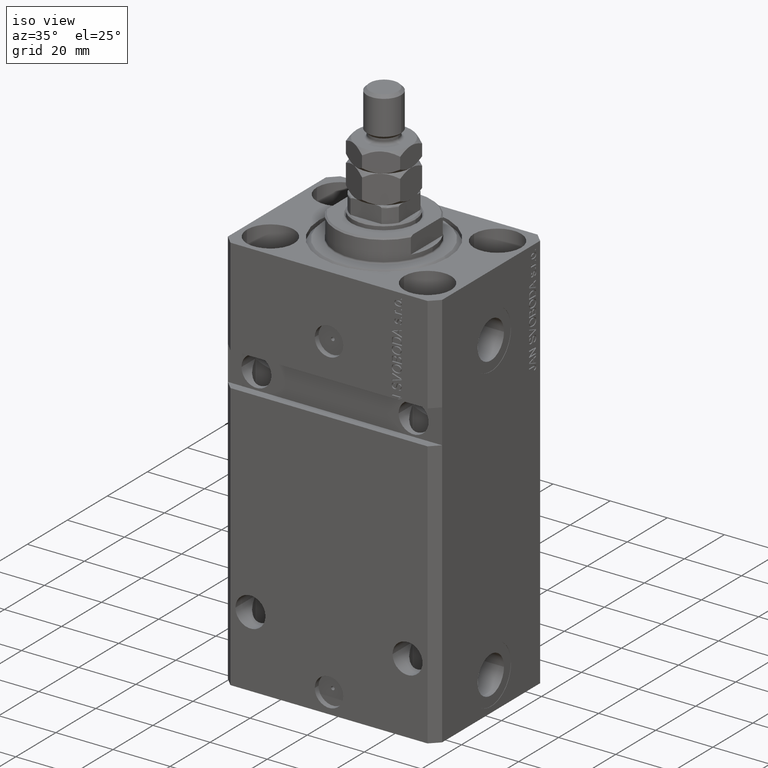
[diagram: clean part render]
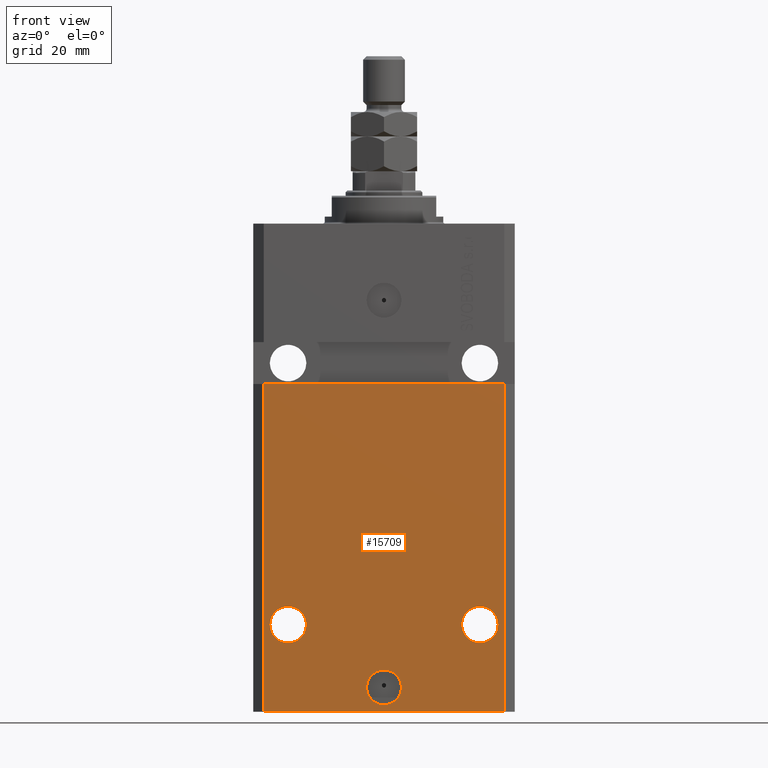
[diagram: tour spotlight — one face highlighted and labeled with its STEP entity id]
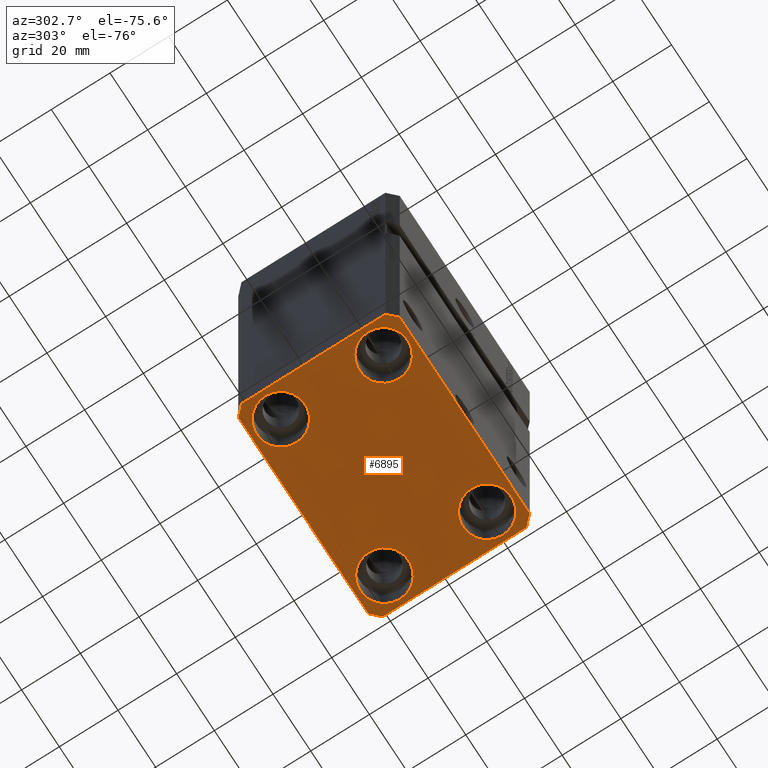
[diagram: tour spotlight — one face highlighted and labeled with its STEP entity id]
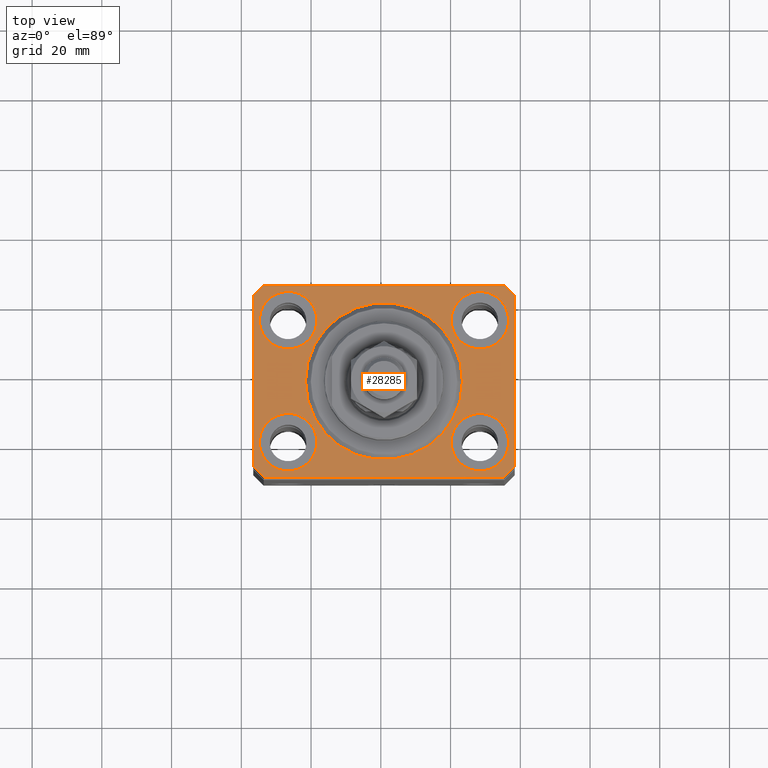
[diagram: tour spotlight — one face highlighted and labeled with its STEP entity id]
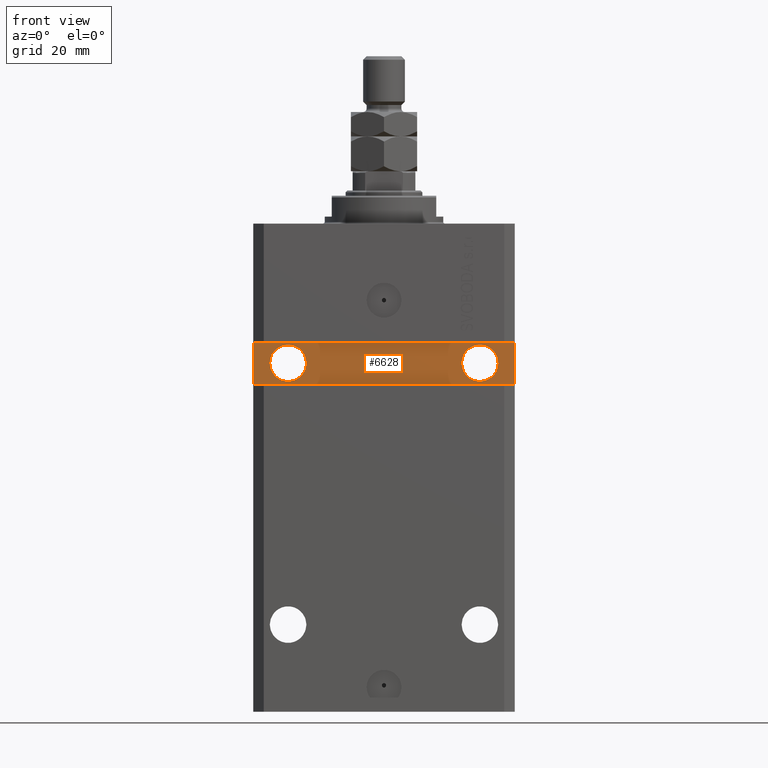
[diagram: tour spotlight — one face highlighted and labeled with its STEP entity id]
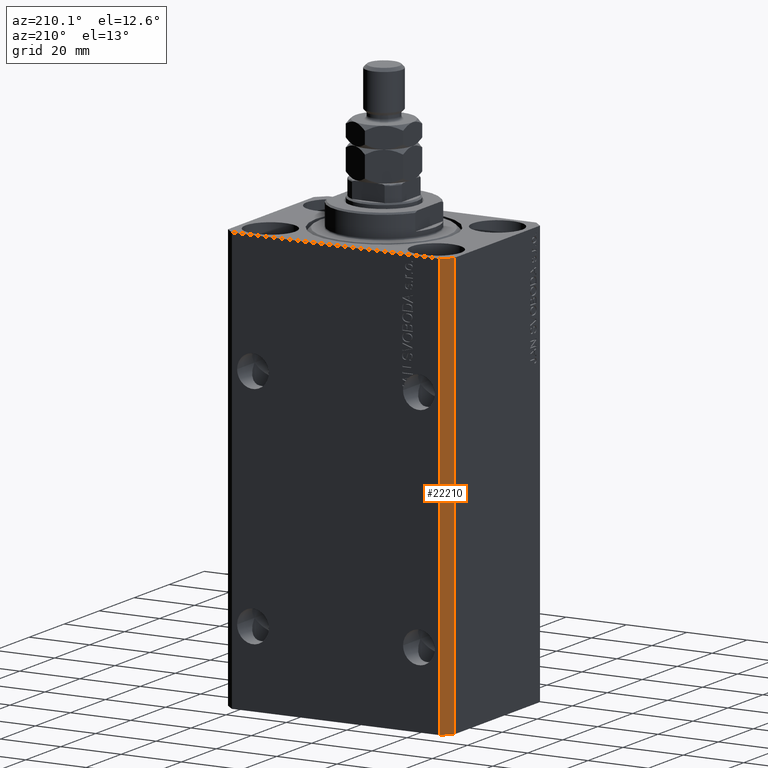
[diagram: tour spotlight — one face highlighted and labeled with its STEP entity id]
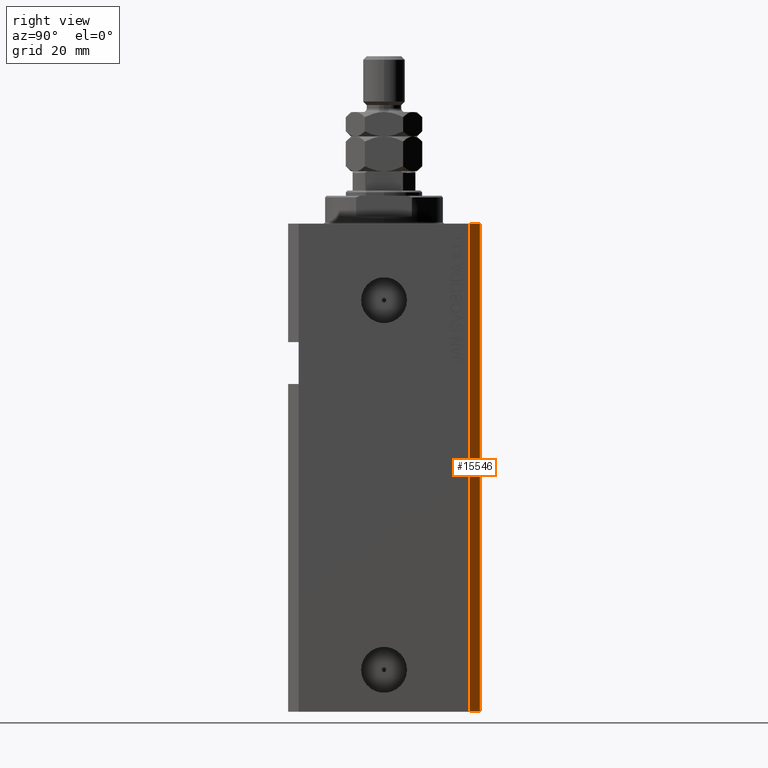
[diagram: tour spotlight — one face highlighted and labeled with its STEP entity id]
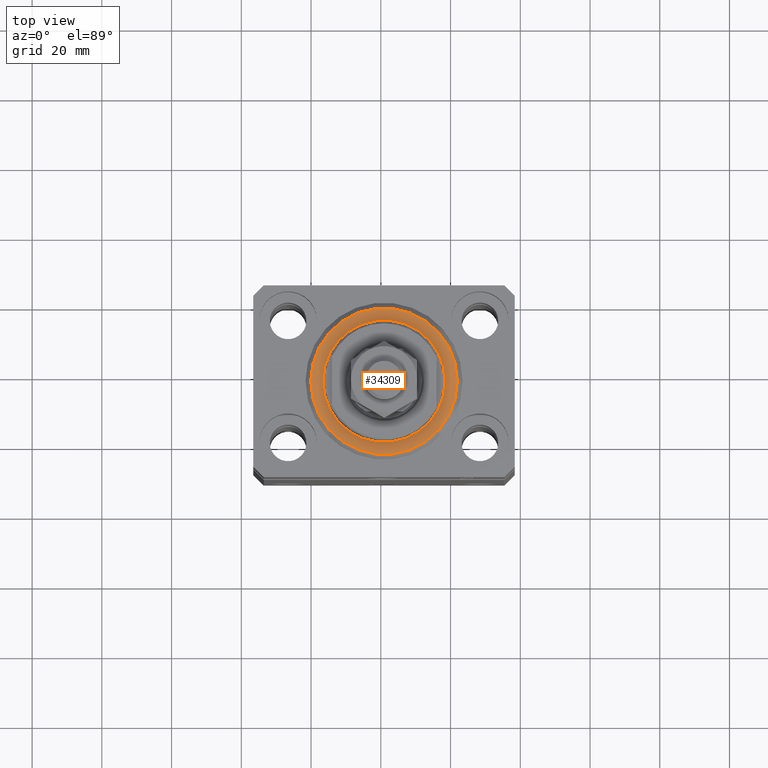
[diagram: tour spotlight — one face highlighted and labeled with its STEP entity id]
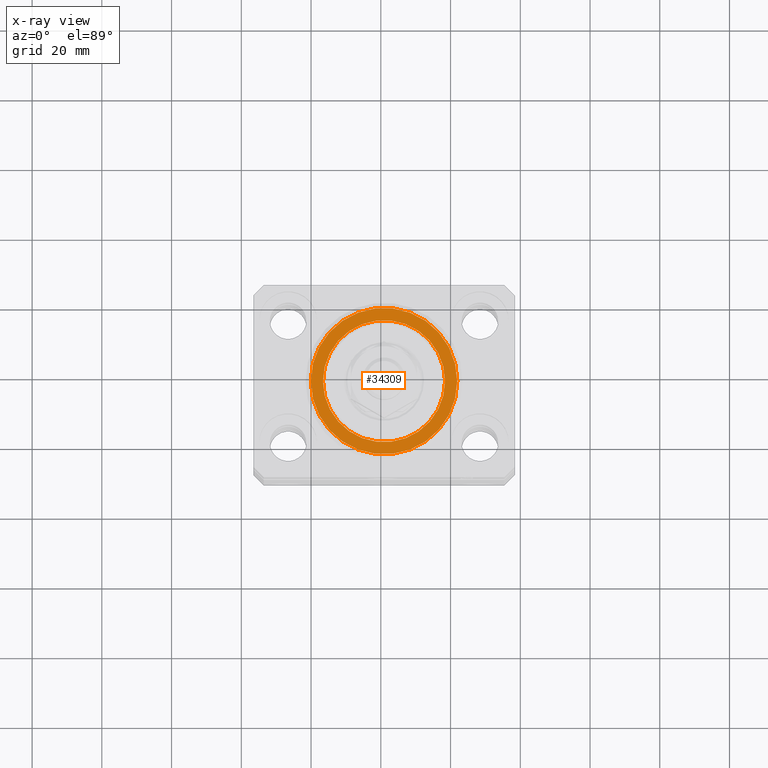
[diagram: x-ray of the same camera — body ghosted, this tour face saturated]
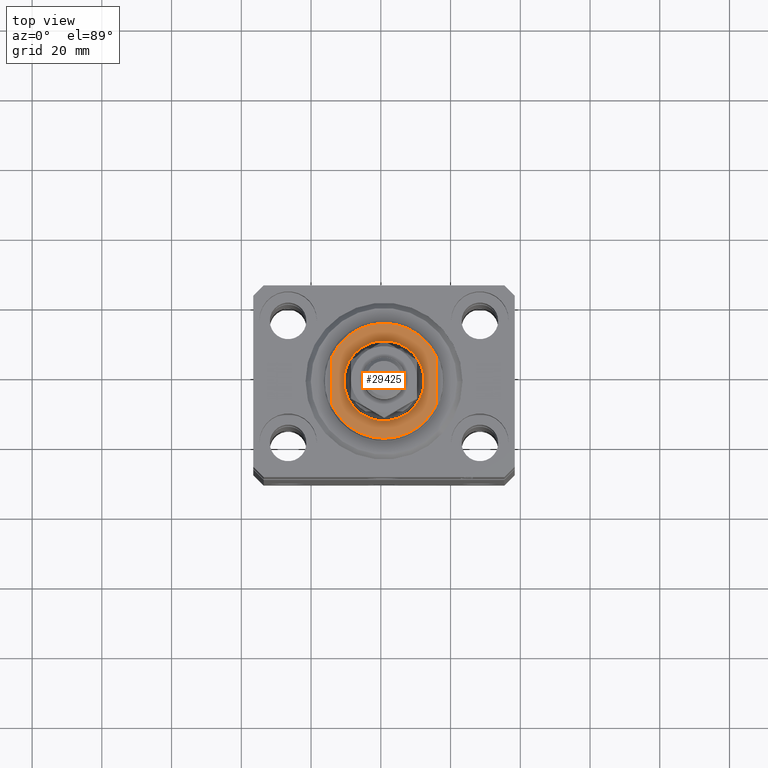
[diagram: tour spotlight — one face highlighted and labeled with its STEP entity id]
A machine part: a face-by-face anatomy tour. The part has 963 B-rep faces; the first image is the clean iso view, then the 8 largest visible faces are spotlighted one at a time (largest first), each with its STEP entity span.

Face 1 — front view, entity #15709. In plain terms, the highlighted planar face has unit normal (0, -1, 0).
Definition (entity closure, byte-faithful):
#379 = ORIENTED_EDGE ( 'NONE', *, *, #1397, .F. ) ;
#1397 = EDGE_CURVE ( 'NONE', #36921, #39883, #38174, .T. ) ;
#1476 = DIRECTION ( 'NONE',  ( 1.176083712526788232E-16, -1.000000000000000000, 0.000000000000000000 ) ) ;
#1504 = EDGE_CURVE ( 'NONE', #20198, #34349, #42659, .T. ) ;
#2279 = CARTESIAN_POINT ( 'NONE',  ( 27.50000000000001776, -27.49999999999999289, -114.9999999999999858 ) ) ;
#2753 = VERTEX_POINT ( 'NONE', #40511 ) ;
#3241 = CARTESIAN_POINT ( 'NONE',  ( -27.50000000000001776, -27.50000000000000000, -114.9999999999999858 ) ) ;
#3839 = LINE ( 'NONE', #36551, #23003 ) ;
#4114 = FACE_OUTER_BOUND ( 'NONE', #45720, .T. ) ;
#4746 = ORIENTED_EDGE ( 'NONE', *, *, #5673, .F. ) ;
#5673 = EDGE_CURVE ( 'NONE', #17750, #2753, #40520, .T. ) ;
#5995 = ORIENTED_EDGE ( 'NONE', *, *, #27740, .F. ) ;
#6144 = CARTESIAN_POINT ( 'NONE',  ( -34.49999999999998579, -27.49999999999999645, -140.0000000000000000 ) ) ;
#6472 = CARTESIAN_POINT ( 'NONE',  ( -34.49999999999998579, -27.49999999999999645, -140.0000000000000000 ) ) ;
#6867 = LINE ( 'NONE', #17394, #28999 ) ;
#8034 = DIRECTION ( 'NONE',  ( -1.000000000000000000, 0.000000000000000000, 0.000000000000000000 ) ) ;
#9596 = CIRCLE ( 'NONE', #15561, 5.249999999999997335 ) ;
#9679 = CARTESIAN_POINT ( 'NONE',  ( -37.50000000000000000, -27.50000000000000000, -46.00000000000000000 ) ) ;
#10664 = FACE_BOUND ( 'NONE', #28225, .T. ) ;
#14918 = DIRECTION ( 'NONE',  ( -1.000000000000000000, 0.000000000000000000, 0.000000000000000000 ) ) ;
#15317 = CARTESIAN_POINT ( 'NONE',  ( -5.000000000000006217, -27.49999999999999645, -133.0000000000000000 ) ) ;
#15561 = AXIS2_PLACEMENT_3D ( 'NONE', #3241, #35484, #14918 ) ;
#15709 = ADVANCED_FACE ( 'NONE', ( #20956, #35198, #10664, #4114 ), #18136, .T. ) ;
#16789 = DIRECTION ( 'NONE',  ( 1.176083712526788232E-16, -1.000000000000000000, 0.000000000000000000 ) ) ;
#17226 = CARTESIAN_POINT ( 'NONE',  ( 34.49999999999999289, -27.49999999999999645, -140.0000000000000000 ) ) ;
#17394 = CARTESIAN_POINT ( 'NONE',  ( 34.49999999999999289, -27.49999999999999645, -140.0000000000000000 ) ) ;
#17457 = CARTESIAN_POINT ( 'NONE',  ( 27.50000000000001776, -27.49999999999999289, -114.9999999999999858 ) ) ;
#17750 = VERTEX_POINT ( 'NONE', #27799 ) ;
#18136 = PLANE ( 'NONE',  #38175 ) ;
#18242 = EDGE_CURVE ( 'NONE', #20282, #19510, #38172, .T. ) ;
#18334 = CARTESIAN_POINT ( 'NONE',  ( 0.000000000000000000, -27.49999999999999645, -133.0000000000000000 ) ) ;
#18823 = ORIENTED_EDGE ( 'NONE', *, *, #39555, .F. ) ;
#19510 = VERTEX_POINT ( 'NONE', #34569 ) ;
#20198 = VERTEX_POINT ( 'NONE', #31661 ) ;
#20282 = VERTEX_POINT ( 'NONE', #31427 ) ;
#20956 = FACE_BOUND ( 'NONE', #41251, .T. ) ;
#21255 = EDGE_CURVE ( 'NONE', #40508, #20282, #27656, .T. ) ;
#21440 = ORIENTED_EDGE ( 'NONE', *, *, #45712, .T. ) ;
#21748 = VECTOR ( 'NONE', #40763, 1000.000000000000000 ) ;
#21977 = CARTESIAN_POINT ( 'NONE',  ( 0.000000000000000000, -27.49999999999999645, -133.0000000000000000 ) ) ;
#22744 = AXIS2_PLACEMENT_3D ( 'NONE', #21977, #25022, #36231 ) ;
#22978 = CARTESIAN_POINT ( 'NONE',  ( -27.50000000000001776, -27.50000000000000000, -114.9999999999999858 ) ) ;
#23003 = VECTOR ( 'NONE', #43563, 1000.000000000000000 ) ;
#24476 = DIRECTION ( 'NONE',  ( 1.176083712526788232E-16, -1.000000000000000000, 0.000000000000000000 ) ) ;
#24981 = CIRCLE ( 'NONE', #40643, 5.249999999999997335 ) ;
#25022 = DIRECTION ( 'NONE',  ( 1.176083712526788232E-16, -1.000000000000000000, 0.000000000000000000 ) ) ;
#26183 = ORIENTED_EDGE ( 'NONE', *, *, #21255, .F. ) ;
#27377 = EDGE_CURVE ( 'NONE', #39883, #36921, #42147, .T. ) ;
#27656 = LINE ( 'NONE', #6144, #27837 ) ;
#27740 = EDGE_CURVE ( 'NONE', #2753, #17750, #24981, .T. ) ;
#27799 = CARTESIAN_POINT ( 'NONE',  ( 22.25000000000002132, -27.49999999999999289, -114.9999999999999858 ) ) ;
#27837 = VECTOR ( 'NONE', #44940, 1000.000000000000000 ) ;
#28225 = EDGE_LOOP ( 'NONE', ( #41543, #18823 ) ) ;
#28890 = DIRECTION ( 'NONE',  ( 0.000000000000000000, -1.000000000000000000, 0.000000000000000000 ) ) ;
#28999 = VECTOR ( 'NONE', #31649, 1000.000000000000000 ) ;
#29988 = AXIS2_PLACEMENT_3D ( 'NONE', #18334, #24476, #35847 ) ;
#30285 = ORIENTED_EDGE ( 'NONE', *, *, #38851, .T. ) ;
#30436 = ORIENTED_EDGE ( 'NONE', *, *, #27377, .F. ) ;
#31427 = CARTESIAN_POINT ( 'NONE',  ( -34.49999999999998579, -27.50000000000000000, -46.00000000000000000 ) ) ;
#31649 = DIRECTION ( 'NONE',  ( 0.000000000000000000, 0.000000000000000000, 1.000000000000000000 ) ) ;
#31661 = CARTESIAN_POINT ( 'NONE',  ( -22.25000000000002132, -27.50000000000000000, -114.9999999999999858 ) ) ;
#31703 = DIRECTION ( 'NONE',  ( 0.000000000000000000, -0.000000000000000000, -1.000000000000000000 ) ) ;
#33263 = ORIENTED_EDGE ( 'NONE', *, *, #18242, .F. ) ;
#34349 = VERTEX_POINT ( 'NONE', #41548 ) ;
#34514 = DIRECTION ( 'NONE',  ( 1.176083712526788232E-16, -1.000000000000000000, 0.000000000000000000 ) ) ;
#34569 = CARTESIAN_POINT ( 'NONE',  ( 34.49999999999999289, -27.49999999999999289, -45.99999999999999289 ) ) ;
#35198 = FACE_BOUND ( 'NONE', #42225, .T. ) ;
#35427 = CARTESIAN_POINT ( 'NONE',  ( -34.49999999999998579, -27.49999999999999645, -140.0000000000000000 ) ) ;
#35484 = DIRECTION ( 'NONE',  ( 1.176083712526788232E-16, -1.000000000000000000, 0.000000000000000000 ) ) ;
#35847 = DIRECTION ( 'NONE',  ( 1.000000000000000000, 0.000000000000000000, 0.000000000000000000 ) ) ;
#36231 = DIRECTION ( 'NONE',  ( 1.000000000000000000, 0.000000000000000000, 0.000000000000000000 ) ) ;
#36551 = CARTESIAN_POINT ( 'NONE',  ( -34.49999999999998579, -27.49999999999999645, -140.0000000000000000 ) ) ;
#36921 = VERTEX_POINT ( 'NONE', #43254 ) ;
#37447 = AXIS2_PLACEMENT_3D ( 'NONE', #22978, #1476, #8034 ) ;
#37573 = VERTEX_POINT ( 'NONE', #17226 ) ;
#38172 = LINE ( 'NONE', #9679, #21748 ) ;
#38174 = CIRCLE ( 'NONE', #29988, 5.000000000000006217 ) ;
#38175 = AXIS2_PLACEMENT_3D ( 'NONE', #35427, #28890, #31703 ) ;
#38482 = DIRECTION ( 'NONE',  ( 1.000000000000000000, 0.000000000000000000, 0.000000000000000000 ) ) ;
#38851 = EDGE_CURVE ( 'NONE', #40508, #37573, #3839, .T. ) ;
#39555 = EDGE_CURVE ( 'NONE', #34349, #20198, #9596, .T. ) ;
#39883 = VERTEX_POINT ( 'NONE', #15317 ) ;
#40508 = VERTEX_POINT ( 'NONE', #6472 ) ;
#40511 = CARTESIAN_POINT ( 'NONE',  ( 32.75000000000001421, -27.49999999999999289, -114.9999999999999858 ) ) ;
#40520 = CIRCLE ( 'NONE', #44922, 5.249999999999997335 ) ;
#40643 = AXIS2_PLACEMENT_3D ( 'NONE', #17457, #34514, #38482 ) ;
#40763 = DIRECTION ( 'NONE',  ( 1.000000000000000000, 9.251858538542972814E-17, 9.251858538542972814E-17 ) ) ;
#41251 = EDGE_LOOP ( 'NONE', ( #379, #30436 ) ) ;
#41543 = ORIENTED_EDGE ( 'NONE', *, *, #1504, .F. ) ;
#41548 = CARTESIAN_POINT ( 'NONE',  ( -32.75000000000001421, -27.50000000000000000, -114.9999999999999858 ) ) ;
#42010 = DIRECTION ( 'NONE',  ( 1.000000000000000000, 0.000000000000000000, 0.000000000000000000 ) ) ;
#42147 = CIRCLE ( 'NONE', #22744, 5.000000000000006217 ) ;
#42225 = EDGE_LOOP ( 'NONE', ( #5995, #4746 ) ) ;
#42659 = CIRCLE ( 'NONE', #37447, 5.249999999999997335 ) ;
#43254 = CARTESIAN_POINT ( 'NONE',  ( 5.000000000000006217, -27.49999999999999645, -133.0000000000000000 ) ) ;
#43563 = DIRECTION ( 'NONE',  ( 1.000000000000000000, 0.000000000000000000, 0.000000000000000000 ) ) ;
#44922 = AXIS2_PLACEMENT_3D ( 'NONE', #2279, #16789, #42010 ) ;
#44940 = DIRECTION ( 'NONE',  ( 0.000000000000000000, 0.000000000000000000, 1.000000000000000000 ) ) ;
#45712 = EDGE_CURVE ( 'NONE', #37573, #19510, #6867, .T. ) ;
#45720 = EDGE_LOOP ( 'NONE', ( #33263, #26183, #30285, #21440 ) ) ;

Face 2 — auxiliary view, entity #6895. In plain terms, the highlighted planar face has unit normal (0, 0, 1).
Definition (entity closure, byte-faithful):
#701 = CARTESIAN_POINT ( 'NONE',  ( -27.50000000000000355, 17.50000000000000000, -140.0000000000000000 ) ) ;
#755 = CARTESIAN_POINT ( 'NONE',  ( 34.50000000000056843, 27.50000000000000000, -140.0000000000000000 ) ) ;
#1201 = EDGE_CURVE ( 'NONE', #27627, #13590, #4598, .T. ) ;
#1611 = CARTESIAN_POINT ( 'NONE',  ( 35.74999999999999289, 17.50000000000001066, -140.0000000000000000 ) ) ;
#1727 = EDGE_CURVE ( 'NONE', #32967, #23375, #27878, .T. ) ;
#1810 = CARTESIAN_POINT ( 'NONE',  ( 27.50000000000000355, -17.50000000000000000, -140.0000000000000000 ) ) ;
#1885 = VECTOR ( 'NONE', #3915, 1000.000000000000000 ) ;
#1987 = CARTESIAN_POINT ( 'NONE',  ( 27.49999999999999645, 17.50000000000001066, -140.0000000000000000 ) ) ;
#2038 = DIRECTION ( 'NONE',  ( -0.000000000000000000, -0.000000000000000000, 1.000000000000000000 ) ) ;
#2582 = EDGE_CURVE ( 'NONE', #23375, #43438, #14835, .T. ) ;
#2964 = CARTESIAN_POINT ( 'NONE',  ( -19.25000000000000355, -17.50000000000000000, -140.0000000000000000 ) ) ;
#3292 = DIRECTION ( 'NONE',  ( -0.000000000000000000, -0.000000000000000000, 1.000000000000000000 ) ) ;
#3839 = LINE ( 'NONE', #36551, #23003 ) ;
#3907 = DIRECTION ( 'NONE',  ( -0.7071067811865471286, -0.7071067811865479058, 0.000000000000000000 ) ) ;
#3915 = DIRECTION ( 'NONE',  ( 0.000000000000000000, -1.000000000000000000, 0.000000000000000000 ) ) ;
#4598 = CIRCLE ( 'NONE', #9841, 8.250000000000000000 ) ;
#5007 = LINE ( 'NONE', #8277, #28647 ) ;
#5620 = DIRECTION ( 'NONE',  ( -0.000000000000000000, -0.000000000000000000, 1.000000000000000000 ) ) ;
#5760 = EDGE_CURVE ( 'NONE', #32463, #39742, #6724, .T. ) ;
#5992 = FACE_BOUND ( 'NONE', #24175, .T. ) ;
#6421 = DIRECTION ( 'NONE',  ( -0.000000000000000000, -0.000000000000000000, 1.000000000000000000 ) ) ;
#6472 = CARTESIAN_POINT ( 'NONE',  ( -34.49999999999998579, -27.49999999999999645, -140.0000000000000000 ) ) ;
#6495 = ORIENTED_EDGE ( 'NONE', *, *, #22655, .T. ) ;
#6661 = VERTEX_POINT ( 'NONE', #17043 ) ;
#6724 = LINE ( 'NONE', #35916, #42689 ) ;
#6895 = ADVANCED_FACE ( 'NONE', ( #40814, #27035, #23755, #5992, #27276 ), #8809, .F. ) ;
#7025 = CARTESIAN_POINT ( 'NONE',  ( -35.75000000000000711, 17.50000000000000000, -140.0000000000000000 ) ) ;
#7161 = VECTOR ( 'NONE', #29940, 1000.000000000000000 ) ;
#7253 = EDGE_CURVE ( 'NONE', #6661, #27478, #12869, .T. ) ;
#8277 = CARTESIAN_POINT ( 'NONE',  ( -37.49999999999999289, -24.50000000000000000, -140.0000000000000000 ) ) ;
#8809 = PLANE ( 'NONE',  #44218 ) ;
#9246 = CARTESIAN_POINT ( 'NONE',  ( -27.50000000000000355, 17.50000000000000000, -140.0000000000000000 ) ) ;
#9396 = EDGE_LOOP ( 'NONE', ( #6495, #45664 ) ) ;
#9465 = DIRECTION ( 'NONE',  ( 1.000000000000000000, 0.000000000000000000, 0.000000000000000000 ) ) ;
#9504 = DIRECTION ( 'NONE',  ( 0.000000000000000000, 0.000000000000000000, 1.000000000000000000 ) ) ;
#9545 = VERTEX_POINT ( 'NONE', #21390 ) ;
#9841 = AXIS2_PLACEMENT_3D ( 'NONE', #1810, #2038, #30555 ) ;
#10218 = EDGE_CURVE ( 'NONE', #37573, #32967, #43914, .T. ) ;
#10295 = DIRECTION ( 'NONE',  ( -0.000000000000000000, -0.000000000000000000, 1.000000000000000000 ) ) ;
#10535 = EDGE_CURVE ( 'NONE', #23648, #40508, #5007, .T. ) ;
#11101 = CARTESIAN_POINT ( 'NONE',  ( 37.50000000000051870, 24.49999999999995381, -140.0000000000000000 ) ) ;
#11935 = EDGE_LOOP ( 'NONE', ( #13273, #26843 ) ) ;
#12148 = EDGE_CURVE ( 'NONE', #19406, #9545, #30218, .T. ) ;
#12256 = ORIENTED_EDGE ( 'NONE', *, *, #10218, .F. ) ;
#12739 = DIRECTION ( 'NONE',  ( -0.000000000000000000, -0.000000000000000000, 1.000000000000000000 ) ) ;
#12869 = CIRCLE ( 'NONE', #41986, 8.249999999999992895 ) ;
#13053 = CARTESIAN_POINT ( 'NONE',  ( 37.49999999999999289, -24.50000000000000000, -140.0000000000000000 ) ) ;
#13273 = ORIENTED_EDGE ( 'NONE', *, *, #7253, .T. ) ;
#13590 = VERTEX_POINT ( 'NONE', #28818 ) ;
#13812 = CIRCLE ( 'NONE', #24348, 8.250000000000000000 ) ;
#13985 = EDGE_CURVE ( 'NONE', #39742, #23648, #36164, .T. ) ;
#14835 = LINE ( 'NONE', #11101, #33752 ) ;
#15586 = CARTESIAN_POINT ( 'NONE',  ( -37.49999999999999289, 24.50000000000000000, -140.0000000000000000 ) ) ;
#15804 = DIRECTION ( 'NONE',  ( 1.000000000000000000, 0.000000000000000000, 0.000000000000000000 ) ) ;
#16056 = CARTESIAN_POINT ( 'NONE',  ( 0.000000000000000000, 0.000000000000000000, -140.0000000000000000 ) ) ;
#16368 = DIRECTION ( 'NONE',  ( 1.000000000000000000, 0.000000000000000000, 0.000000000000000000 ) ) ;
#16410 = VERTEX_POINT ( 'NONE', #2964 ) ;
#17043 = CARTESIAN_POINT ( 'NONE',  ( 19.25000000000000000, 17.50000000000001066, -140.0000000000000000 ) ) ;
#17226 = CARTESIAN_POINT ( 'NONE',  ( 34.49999999999999289, -27.49999999999999645, -140.0000000000000000 ) ) ;
#17785 = DIRECTION ( 'NONE',  ( 1.000000000000000000, 0.000000000000000000, 0.000000000000000000 ) ) ;
#18052 = VECTOR ( 'NONE', #28109, 1000.000000000000000 ) ;
#18200 = CARTESIAN_POINT ( 'NONE',  ( 34.50000000000056843, 27.50000000000000000, -140.0000000000000000 ) ) ;
#18493 = ORIENTED_EDGE ( 'NONE', *, *, #10535, .F. ) ;
#18924 = DIRECTION ( 'NONE',  ( 0.7071067811865474617, 0.7071067811865474617, 0.000000000000000000 ) ) ;
#19406 = VERTEX_POINT ( 'NONE', #7025 ) ;
#20330 = ORIENTED_EDGE ( 'NONE', *, *, #12148, .T. ) ;
#20757 = EDGE_LOOP ( 'NONE', ( #42513, #31306, #40258, #12256, #42785, #18493, #22732, #30446 ) ) ;
#20862 = CARTESIAN_POINT ( 'NONE',  ( 37.49999999999999289, -24.50000000000000000, -140.0000000000000000 ) ) ;
#20951 = VERTEX_POINT ( 'NONE', #29313 ) ;
#21390 = CARTESIAN_POINT ( 'NONE',  ( -19.25000000000000355, 17.50000000000000000, -140.0000000000000000 ) ) ;
#21718 = EDGE_CURVE ( 'NONE', #9545, #19406, #44219, .T. ) ;
#22247 = CIRCLE ( 'NONE', #30441, 8.249999999999992895 ) ;
#22305 = DIRECTION ( 'NONE',  ( -0.7071067811865356934, 0.7071067811865594521, 0.000000000000000000 ) ) ;
#22655 = EDGE_CURVE ( 'NONE', #13590, #27627, #29326, .T. ) ;
#22732 = ORIENTED_EDGE ( 'NONE', *, *, #13985, .F. ) ;
#22814 = DIRECTION ( 'NONE',  ( -0.000000000000000000, -0.000000000000000000, 1.000000000000000000 ) ) ;
#22874 = ORIENTED_EDGE ( 'NONE', *, *, #28068, .T. ) ;
#23003 = VECTOR ( 'NONE', #43563, 1000.000000000000000 ) ;
#23375 = VERTEX_POINT ( 'NONE', #35345 ) ;
#23484 = CARTESIAN_POINT ( 'NONE',  ( -27.50000000000000355, -17.50000000000000000, -140.0000000000000000 ) ) ;
#23531 = CARTESIAN_POINT ( 'NONE',  ( -37.49999999999999289, 24.50000000000000000, -140.0000000000000000 ) ) ;
#23539 = AXIS2_PLACEMENT_3D ( 'NONE', #23484, #6421, #9465 ) ;
#23648 = VERTEX_POINT ( 'NONE', #42307 ) ;
#23755 = FACE_BOUND ( 'NONE', #11935, .T. ) ;
#24175 = EDGE_LOOP ( 'NONE', ( #20330, #36027 ) ) ;
#24348 = AXIS2_PLACEMENT_3D ( 'NONE', #41346, #34575, #41582 ) ;
#25236 = DIRECTION ( 'NONE',  ( 1.000000000000000000, 0.000000000000000000, 0.000000000000000000 ) ) ;
#26825 = EDGE_LOOP ( 'NONE', ( #27426, #22874 ) ) ;
#26843 = ORIENTED_EDGE ( 'NONE', *, *, #38538, .T. ) ;
#27035 = FACE_BOUND ( 'NONE', #9396, .T. ) ;
#27276 = FACE_OUTER_BOUND ( 'NONE', #20757, .T. ) ;
#27426 = ORIENTED_EDGE ( 'NONE', *, *, #31070, .T. ) ;
#27478 = VERTEX_POINT ( 'NONE', #1611 ) ;
#27627 = VERTEX_POINT ( 'NONE', #34554 ) ;
#27878 = LINE ( 'NONE', #20862, #18052 ) ;
#28068 = EDGE_CURVE ( 'NONE', #16410, #20951, #43694, .T. ) ;
#28109 = DIRECTION ( 'NONE',  ( 1.076236605503979380E-14, 1.000000000000000000, 0.000000000000000000 ) ) ;
#28647 = VECTOR ( 'NONE', #43578, 1000.000000000000000 ) ;
#28818 = CARTESIAN_POINT ( 'NONE',  ( 19.25000000000000000, -17.50000000000000000, -140.0000000000000000 ) ) ;
#29258 = LINE ( 'NONE', #755, #7161 ) ;
#29313 = CARTESIAN_POINT ( 'NONE',  ( -35.75000000000000711, -17.50000000000000000, -140.0000000000000000 ) ) ;
#29326 = CIRCLE ( 'NONE', #42760, 8.250000000000000000 ) ;
#29940 = DIRECTION ( 'NONE',  ( -1.000000000000000000, 0.000000000000000000, 0.000000000000000000 ) ) ;
#30218 = CIRCLE ( 'NONE', #30947, 8.250000000000000000 ) ;
#30441 = AXIS2_PLACEMENT_3D ( 'NONE', #1987, #12739, #40552 ) ;
#30446 = ORIENTED_EDGE ( 'NONE', *, *, #5760, .F. ) ;
#30555 = DIRECTION ( 'NONE',  ( 1.000000000000000000, 0.000000000000000000, 0.000000000000000000 ) ) ;
#30947 = AXIS2_PLACEMENT_3D ( 'NONE', #9246, #22814, #15804 ) ;
#31070 = EDGE_CURVE ( 'NONE', #20951, #16410, #13812, .T. ) ;
#31306 = ORIENTED_EDGE ( 'NONE', *, *, #2582, .F. ) ;
#32463 = VERTEX_POINT ( 'NONE', #42180 ) ;
#32967 = VERTEX_POINT ( 'NONE', #13053 ) ;
#33752 = VECTOR ( 'NONE', #22305, 1000.000000000000114 ) ;
#33863 = EDGE_CURVE ( 'NONE', #43438, #32463, #29258, .T. ) ;
#33903 = CARTESIAN_POINT ( 'NONE',  ( 27.50000000000000355, -17.50000000000000000, -140.0000000000000000 ) ) ;
#34554 = CARTESIAN_POINT ( 'NONE',  ( 35.75000000000000711, -17.50000000000000000, -140.0000000000000000 ) ) ;
#34575 = DIRECTION ( 'NONE',  ( -0.000000000000000000, -0.000000000000000000, 1.000000000000000000 ) ) ;
#35305 = CARTESIAN_POINT ( 'NONE',  ( 27.49999999999999645, 17.50000000000001066, -140.0000000000000000 ) ) ;
#35345 = CARTESIAN_POINT ( 'NONE',  ( 37.50000000000051870, 24.49999999999995381, -140.0000000000000000 ) ) ;
#35916 = CARTESIAN_POINT ( 'NONE',  ( -34.49999999999999289, 27.50000000000000000, -140.0000000000000000 ) ) ;
#36027 = ORIENTED_EDGE ( 'NONE', *, *, #21718, .T. ) ;
#36164 = LINE ( 'NONE', #15586, #1885 ) ;
#36551 = CARTESIAN_POINT ( 'NONE',  ( -34.49999999999998579, -27.49999999999999645, -140.0000000000000000 ) ) ;
#36750 = AXIS2_PLACEMENT_3D ( 'NONE', #701, #10295, #25236 ) ;
#37305 = DIRECTION ( 'NONE',  ( 1.000000000000000000, 0.000000000000000000, -0.000000000000000000 ) ) ;
#37573 = VERTEX_POINT ( 'NONE', #17226 ) ;
#37603 = VECTOR ( 'NONE', #18924, 1000.000000000000114 ) ;
#38538 = EDGE_CURVE ( 'NONE', #27478, #6661, #22247, .T. ) ;
#38851 = EDGE_CURVE ( 'NONE', #40508, #37573, #3839, .T. ) ;
#39742 = VERTEX_POINT ( 'NONE', #23531 ) ;
#40258 = ORIENTED_EDGE ( 'NONE', *, *, #1727, .F. ) ;
#40399 = CARTESIAN_POINT ( 'NONE',  ( 34.49999999999999289, -27.49999999999999645, -140.0000000000000000 ) ) ;
#40508 = VERTEX_POINT ( 'NONE', #6472 ) ;
#40552 = DIRECTION ( 'NONE',  ( 1.000000000000000000, 0.000000000000000000, 0.000000000000000000 ) ) ;
#40814 = FACE_BOUND ( 'NONE', #26825, .T. ) ;
#41346 = CARTESIAN_POINT ( 'NONE',  ( -27.50000000000000355, -17.50000000000000000, -140.0000000000000000 ) ) ;
#41582 = DIRECTION ( 'NONE',  ( 1.000000000000000000, 0.000000000000000000, 0.000000000000000000 ) ) ;
#41986 = AXIS2_PLACEMENT_3D ( 'NONE', #35305, #3292, #17785 ) ;
#42180 = CARTESIAN_POINT ( 'NONE',  ( -34.49999999999999289, 27.50000000000000000, -140.0000000000000000 ) ) ;
#42307 = CARTESIAN_POINT ( 'NONE',  ( -37.49999999999999289, -24.50000000000000000, -140.0000000000000000 ) ) ;
#42513 = ORIENTED_EDGE ( 'NONE', *, *, #33863, .F. ) ;
#42689 = VECTOR ( 'NONE', #3907, 1000.000000000000000 ) ;
#42760 = AXIS2_PLACEMENT_3D ( 'NONE', #33903, #5620, #16368 ) ;
#42785 = ORIENTED_EDGE ( 'NONE', *, *, #38851, .F. ) ;
#43438 = VERTEX_POINT ( 'NONE', #18200 ) ;
#43563 = DIRECTION ( 'NONE',  ( 1.000000000000000000, 0.000000000000000000, 0.000000000000000000 ) ) ;
#43578 = DIRECTION ( 'NONE',  ( 0.7071067811865483499, -0.7071067811865466846, 0.000000000000000000 ) ) ;
#43694 = CIRCLE ( 'NONE', #23539, 8.250000000000000000 ) ;
#43914 = LINE ( 'NONE', #40399, #37603 ) ;
#44218 = AXIS2_PLACEMENT_3D ( 'NONE', #16056, #9504, #37305 ) ;
#44219 = CIRCLE ( 'NONE', #36750, 8.250000000000000000 ) ;
#45664 = ORIENTED_EDGE ( 'NONE', *, *, #1201, .T. ) ;

Face 3 — top view, entity #28285. In plain terms, the highlighted planar face has unit normal (0, 0, 1).
Definition (entity closure, byte-faithful):
#31 = DIRECTION ( 'NONE',  ( 1.076236605503979380E-14, 1.000000000000000000, 0.000000000000000000 ) ) ;
#360 = EDGE_CURVE ( 'NONE', #23679, #40111, #30658, .T. ) ;
#551 = ORIENTED_EDGE ( 'NONE', *, *, #28226, .F. ) ;
#1176 = DIRECTION ( 'NONE',  ( 0.7071067811865474617, 0.7071067811865474617, 0.000000000000000000 ) ) ;
#1184 = ORIENTED_EDGE ( 'NONE', *, *, #11593, .F. ) ;
#1197 = EDGE_LOOP ( 'NONE', ( #17531, #15920 ) ) ;
#1419 = FACE_BOUND ( 'NONE', #1463, .T. ) ;
#1463 = EDGE_LOOP ( 'NONE', ( #2183, #25720 ) ) ;
#1643 = VERTEX_POINT ( 'NONE', #27181 ) ;
#1799 = DIRECTION ( 'NONE',  ( 1.000000000000000000, 0.000000000000000000, 0.000000000000000000 ) ) ;
#2068 = EDGE_CURVE ( 'NONE', #27638, #17524, #17071, .T. ) ;
#2183 = ORIENTED_EDGE ( 'NONE', *, *, #20773, .F. ) ;
#2197 = CARTESIAN_POINT ( 'NONE',  ( 27.49999999999999645, 17.50000000000001066, 0.000000000000000000 ) ) ;
#2259 = DIRECTION ( 'NONE',  ( 0.000000000000000000, 0.000000000000000000, 1.000000000000000000 ) ) ;
#2387 = CIRCLE ( 'NONE', #7636, 8.250000000000000000 ) ;
#2567 = VERTEX_POINT ( 'NONE', #42637 ) ;
#2782 = VECTOR ( 'NONE', #37318, 1000.000000000000000 ) ;
#2899 = VERTEX_POINT ( 'NONE', #22423 ) ;
#3069 = LINE ( 'NONE', #28094, #18789 ) ;
#3207 = DIRECTION ( 'NONE',  ( 0.000000000000000000, 0.000000000000000000, 1.000000000000000000 ) ) ;
#3220 = CARTESIAN_POINT ( 'NONE',  ( -34.49999999999999289, 27.50000000000000000, 0.000000000000000000 ) ) ;
#4282 = EDGE_LOOP ( 'NONE', ( #42621, #40723 ) ) ;
#4665 = CIRCLE ( 'NONE', #34513, 8.250000000000000000 ) ;
#4728 = DIRECTION ( 'NONE',  ( 0.000000000000000000, 0.000000000000000000, 1.000000000000000000 ) ) ;
#4854 = CARTESIAN_POINT ( 'NONE',  ( -34.49999999999998579, -27.49999999999999645, 0.000000000000000000 ) ) ;
#4858 = DIRECTION ( 'NONE',  ( 1.000000000000000000, 0.000000000000000000, 0.000000000000000000 ) ) ;
#4926 = FACE_BOUND ( 'NONE', #1197, .T. ) ;
#5079 = EDGE_CURVE ( 'NONE', #16933, #26557, #31594, .T. ) ;
#5099 = CIRCLE ( 'NONE', #11088, 8.249999999999992895 ) ;
#5215 = DIRECTION ( 'NONE',  ( 0.000000000000000000, 0.000000000000000000, 1.000000000000000000 ) ) ;
#5383 = ORIENTED_EDGE ( 'NONE', *, *, #37363, .T. ) ;
#5475 = CARTESIAN_POINT ( 'NONE',  ( 34.50000000000056843, 27.50000000000000000, 0.000000000000000000 ) ) ;
#5612 = DIRECTION ( 'NONE',  ( 0.000000000000000000, 0.000000000000000000, 1.000000000000000000 ) ) ;
#7005 = CARTESIAN_POINT ( 'NONE',  ( 0.000000000000000000, 0.000000000000000000, 0.000000000000000000 ) ) ;
#7237 = DIRECTION ( 'NONE',  ( -0.7071067811865356934, 0.7071067811865594521, 0.000000000000000000 ) ) ;
#7636 = AXIS2_PLACEMENT_3D ( 'NONE', #38719, #3207, #17466 ) ;
#8199 = EDGE_LOOP ( 'NONE', ( #11038, #29021 ) ) ;
#8204 = EDGE_CURVE ( 'NONE', #26557, #16933, #24846, .T. ) ;
#8761 = DIRECTION ( 'NONE',  ( 1.000000000000000000, 0.000000000000000000, 0.000000000000000000 ) ) ;
#8886 = AXIS2_PLACEMENT_3D ( 'NONE', #36058, #4728, #43987 ) ;
#9129 = VERTEX_POINT ( 'NONE', #46087 ) ;
#9558 = CARTESIAN_POINT ( 'NONE',  ( 19.25000000000000000, -17.50000000000000000, 0.000000000000000000 ) ) ;
#9819 = DIRECTION ( 'NONE',  ( 1.000000000000000000, 0.000000000000000000, 0.000000000000000000 ) ) ;
#9949 = LINE ( 'NONE', #38900, #18416 ) ;
#10625 = CARTESIAN_POINT ( 'NONE',  ( -35.75000000000000711, -17.50000000000000000, 0.000000000000000000 ) ) ;
#10670 = AXIS2_PLACEMENT_3D ( 'NONE', #43773, #11754, #36755 ) ;
#10701 = DIRECTION ( 'NONE',  ( -0.7071067811865471286, -0.7071067811865479058, 0.000000000000000000 ) ) ;
#11038 = ORIENTED_EDGE ( 'NONE', *, *, #45627, .F. ) ;
#11088 = AXIS2_PLACEMENT_3D ( 'NONE', #2197, #12959, #8761 ) ;
#11313 = CIRCLE ( 'NONE', #44891, 8.250000000000000000 ) ;
#11593 = EDGE_CURVE ( 'NONE', #14932, #23235, #42124, .T. ) ;
#11754 = DIRECTION ( 'NONE',  ( 0.000000000000000000, 0.000000000000000000, 1.000000000000000000 ) ) ;
#11915 = VECTOR ( 'NONE', #1176, 1000.000000000000114 ) ;
#12959 = DIRECTION ( 'NONE',  ( 0.000000000000000000, 0.000000000000000000, 1.000000000000000000 ) ) ;
#13334 = CIRCLE ( 'NONE', #26773, 8.250000000000000000 ) ;
#13834 = CARTESIAN_POINT ( 'NONE',  ( -37.49999999999999289, -24.50000000000000000, 0.000000000000000000 ) ) ;
#14932 = VERTEX_POINT ( 'NONE', #20256 ) ;
#15920 = ORIENTED_EDGE ( 'NONE', *, *, #19733, .F. ) ;
#16216 = EDGE_CURVE ( 'NONE', #38548, #27638, #3069, .T. ) ;
#16933 = VERTEX_POINT ( 'NONE', #9558 ) ;
#17071 = LINE ( 'NONE', #21268, #26984 ) ;
#17120 = ORIENTED_EDGE ( 'NONE', *, *, #21950, .T. ) ;
#17466 = DIRECTION ( 'NONE',  ( 1.000000000000000000, 0.000000000000000000, 0.000000000000000000 ) ) ;
#17524 = VERTEX_POINT ( 'NONE', #5475 ) ;
#17531 = ORIENTED_EDGE ( 'NONE', *, *, #21518, .F. ) ;
#17751 = FACE_OUTER_BOUND ( 'NONE', #32807, .T. ) ;
#18315 = AXIS2_PLACEMENT_3D ( 'NONE', #41118, #5612, #30394 ) ;
#18416 = VECTOR ( 'NONE', #21393, 1000.000000000000000 ) ;
#18789 = VECTOR ( 'NONE', #31, 1000.000000000000000 ) ;
#19191 = FACE_BOUND ( 'NONE', #4282, .T. ) ;
#19733 = EDGE_CURVE ( 'NONE', #38763, #35765, #11313, .T. ) ;
#19936 = CARTESIAN_POINT ( 'NONE',  ( -35.75000000000000711, 17.50000000000000000, 0.000000000000000000 ) ) ;
#20123 = DIRECTION ( 'NONE',  ( 1.000000000000000000, 0.000000000000000000, 0.000000000000000000 ) ) ;
#20256 = CARTESIAN_POINT ( 'NONE',  ( -22.50000000000000355, 2.755455298081545172E-15, 0.000000000000000000 ) ) ;
#20317 = VECTOR ( 'NONE', #38941, 1000.000000000000000 ) ;
#20522 = VERTEX_POINT ( 'NONE', #19936 ) ;
#20659 = EDGE_CURVE ( 'NONE', #17524, #2567, #38256, .T. ) ;
#20773 = EDGE_CURVE ( 'NONE', #23545, #20522, #2387, .T. ) ;
#21029 = CARTESIAN_POINT ( 'NONE',  ( 0.000000000000000000, 0.000000000000000000, 0.000000000000000000 ) ) ;
#21268 = CARTESIAN_POINT ( 'NONE',  ( 37.50000000000051870, 24.49999999999995381, 0.000000000000000000 ) ) ;
#21393 = DIRECTION ( 'NONE',  ( 0.000000000000000000, -1.000000000000000000, 0.000000000000000000 ) ) ;
#21518 = EDGE_CURVE ( 'NONE', #35765, #38763, #4665, .T. ) ;
#21950 = EDGE_CURVE ( 'NONE', #2567, #1643, #28005, .T. ) ;
#22053 = AXIS2_PLACEMENT_3D ( 'NONE', #21029, #32004, #42288 ) ;
#22423 = CARTESIAN_POINT ( 'NONE',  ( 35.74999999999999289, 17.50000000000001066, 0.000000000000000000 ) ) ;
#23235 = VERTEX_POINT ( 'NONE', #35577 ) ;
#23246 = ORIENTED_EDGE ( 'NONE', *, *, #2068, .T. ) ;
#23306 = LINE ( 'NONE', #4854, #2782 ) ;
#23545 = VERTEX_POINT ( 'NONE', #31570 ) ;
#23679 = VERTEX_POINT ( 'NONE', #44377 ) ;
#24527 = VERTEX_POINT ( 'NONE', #45536 ) ;
#24846 = CIRCLE ( 'NONE', #10670, 8.250000000000000000 ) ;
#25720 = ORIENTED_EDGE ( 'NONE', *, *, #40451, .F. ) ;
#25941 = CARTESIAN_POINT ( 'NONE',  ( 35.75000000000000711, -17.50000000000000000, 0.000000000000000000 ) ) ;
#26557 = VERTEX_POINT ( 'NONE', #25941 ) ;
#26773 = AXIS2_PLACEMENT_3D ( 'NONE', #30090, #40596, #1799 ) ;
#26984 = VECTOR ( 'NONE', #7237, 1000.000000000000114 ) ;
#27181 = CARTESIAN_POINT ( 'NONE',  ( -37.49999999999999289, 24.50000000000000000, 0.000000000000000000 ) ) ;
#27631 = DIRECTION ( 'NONE',  ( 0.7071067811865483499, -0.7071067811865466846, 0.000000000000000000 ) ) ;
#27638 = VERTEX_POINT ( 'NONE', #34321 ) ;
#27832 = DIRECTION ( 'NONE',  ( 0.000000000000000000, 0.000000000000000000, 1.000000000000000000 ) ) ;
#28005 = LINE ( 'NONE', #3220, #36028 ) ;
#28094 = CARTESIAN_POINT ( 'NONE',  ( 37.49999999999999289, -24.50000000000000000, 0.000000000000000000 ) ) ;
#28226 = EDGE_CURVE ( 'NONE', #23235, #14932, #42192, .T. ) ;
#28285 = ADVANCED_FACE ( 'NONE', ( #4926, #19191, #33436, #1419, #34579, #17751 ), #31775, .T. ) ;
#29021 = ORIENTED_EDGE ( 'NONE', *, *, #42122, .F. ) ;
#29046 = CIRCLE ( 'NONE', #8886, 8.249999999999992895 ) ;
#29230 = LINE ( 'NONE', #36240, #11915 ) ;
#29418 = AXIS2_PLACEMENT_3D ( 'NONE', #7005, #31778, #9819 ) ;
#29958 = VECTOR ( 'NONE', #27631, 1000.000000000000000 ) ;
#30090 = CARTESIAN_POINT ( 'NONE',  ( -27.50000000000000355, 17.50000000000000000, 0.000000000000000000 ) ) ;
#30394 = DIRECTION ( 'NONE',  ( 1.000000000000000000, 0.000000000000000000, 0.000000000000000000 ) ) ;
#30658 = LINE ( 'NONE', #13834, #29958 ) ;
#31570 = CARTESIAN_POINT ( 'NONE',  ( -19.25000000000000355, 17.50000000000000000, 0.000000000000000000 ) ) ;
#31594 = CIRCLE ( 'NONE', #39020, 8.250000000000000000 ) ;
#31640 = ORIENTED_EDGE ( 'NONE', *, *, #16216, .T. ) ;
#31775 = PLANE ( 'NONE',  #22053 ) ;
#31778 = DIRECTION ( 'NONE',  ( 0.000000000000000000, 0.000000000000000000, 1.000000000000000000 ) ) ;
#32004 = DIRECTION ( 'NONE',  ( 0.000000000000000000, 0.000000000000000000, 1.000000000000000000 ) ) ;
#32807 = EDGE_LOOP ( 'NONE', ( #37839, #17120, #46029, #45600, #5383, #45644, #31640, #23246 ) ) ;
#33436 = FACE_BOUND ( 'NONE', #8199, .T. ) ;
#33479 = CARTESIAN_POINT ( 'NONE',  ( -34.49999999999998579, -27.49999999999999645, 0.000000000000000000 ) ) ;
#33729 = DIRECTION ( 'NONE',  ( 1.000000000000000000, 0.000000000000000000, 0.000000000000000000 ) ) ;
#34184 = CARTESIAN_POINT ( 'NONE',  ( 27.50000000000000355, -17.50000000000000000, 0.000000000000000000 ) ) ;
#34321 = CARTESIAN_POINT ( 'NONE',  ( 37.50000000000051870, 24.49999999999995381, 0.000000000000000000 ) ) ;
#34513 = AXIS2_PLACEMENT_3D ( 'NONE', #42068, #27832, #20123 ) ;
#34579 = FACE_BOUND ( 'NONE', #36035, .T. ) ;
#34793 = EDGE_CURVE ( 'NONE', #1643, #23679, #9949, .T. ) ;
#35577 = CARTESIAN_POINT ( 'NONE',  ( 22.50000000000000355, 0.000000000000000000, 0.000000000000000000 ) ) ;
#35765 = VERTEX_POINT ( 'NONE', #40072 ) ;
#36028 = VECTOR ( 'NONE', #10701, 1000.000000000000000 ) ;
#36035 = EDGE_LOOP ( 'NONE', ( #551, #1184 ) ) ;
#36058 = CARTESIAN_POINT ( 'NONE',  ( 27.49999999999999645, 17.50000000000001066, 0.000000000000000000 ) ) ;
#36240 = CARTESIAN_POINT ( 'NONE',  ( 34.49999999999999289, -27.49999999999999645, 0.000000000000000000 ) ) ;
#36755 = DIRECTION ( 'NONE',  ( 1.000000000000000000, 0.000000000000000000, 0.000000000000000000 ) ) ;
#36869 = CARTESIAN_POINT ( 'NONE',  ( -27.50000000000000355, -17.50000000000000000, 0.000000000000000000 ) ) ;
#37318 = DIRECTION ( 'NONE',  ( 1.000000000000000000, 0.000000000000000000, 0.000000000000000000 ) ) ;
#37363 = EDGE_CURVE ( 'NONE', #40111, #24527, #23306, .T. ) ;
#37839 = ORIENTED_EDGE ( 'NONE', *, *, #20659, .T. ) ;
#38256 = LINE ( 'NONE', #42000, #20317 ) ;
#38548 = VERTEX_POINT ( 'NONE', #44532 ) ;
#38719 = CARTESIAN_POINT ( 'NONE',  ( -27.50000000000000355, 17.50000000000000000, 0.000000000000000000 ) ) ;
#38763 = VERTEX_POINT ( 'NONE', #10625 ) ;
#38900 = CARTESIAN_POINT ( 'NONE',  ( -37.49999999999999289, 24.50000000000000000, 0.000000000000000000 ) ) ;
#38941 = DIRECTION ( 'NONE',  ( -1.000000000000000000, 0.000000000000000000, 0.000000000000000000 ) ) ;
#39020 = AXIS2_PLACEMENT_3D ( 'NONE', #34184, #5215, #33729 ) ;
#40072 = CARTESIAN_POINT ( 'NONE',  ( -19.25000000000000355, -17.50000000000000000, 0.000000000000000000 ) ) ;
#40111 = VERTEX_POINT ( 'NONE', #33479 ) ;
#40451 = EDGE_CURVE ( 'NONE', #20522, #23545, #13334, .T. ) ;
#40596 = DIRECTION ( 'NONE',  ( 0.000000000000000000, 0.000000000000000000, 1.000000000000000000 ) ) ;
#40723 = ORIENTED_EDGE ( 'NONE', *, *, #5079, .F. ) ;
#41118 = CARTESIAN_POINT ( 'NONE',  ( 0.000000000000000000, 0.000000000000000000, 0.000000000000000000 ) ) ;
#42000 = CARTESIAN_POINT ( 'NONE',  ( 34.50000000000056843, 27.50000000000000000, 0.000000000000000000 ) ) ;
#42068 = CARTESIAN_POINT ( 'NONE',  ( -27.50000000000000355, -17.50000000000000000, 0.000000000000000000 ) ) ;
#42122 = EDGE_CURVE ( 'NONE', #9129, #2899, #29046, .T. ) ;
#42124 = CIRCLE ( 'NONE', #29418, 22.50000000000000355 ) ;
#42192 = CIRCLE ( 'NONE', #18315, 22.50000000000000355 ) ;
#42288 = DIRECTION ( 'NONE',  ( 1.000000000000000000, 0.000000000000000000, -0.000000000000000000 ) ) ;
#42621 = ORIENTED_EDGE ( 'NONE', *, *, #8204, .F. ) ;
#42637 = CARTESIAN_POINT ( 'NONE',  ( -34.49999999999999289, 27.50000000000000000, 0.000000000000000000 ) ) ;
#43049 = EDGE_CURVE ( 'NONE', #24527, #38548, #29230, .T. ) ;
#43773 = CARTESIAN_POINT ( 'NONE',  ( 27.50000000000000355, -17.50000000000000000, 0.000000000000000000 ) ) ;
#43987 = DIRECTION ( 'NONE',  ( 1.000000000000000000, 0.000000000000000000, 0.000000000000000000 ) ) ;
#44377 = CARTESIAN_POINT ( 'NONE',  ( -37.49999999999999289, -24.50000000000000000, 0.000000000000000000 ) ) ;
#44532 = CARTESIAN_POINT ( 'NONE',  ( 37.49999999999999289, -24.50000000000000000, 0.000000000000000000 ) ) ;
#44891 = AXIS2_PLACEMENT_3D ( 'NONE', #36869, #2259, #4858 ) ;
#45536 = CARTESIAN_POINT ( 'NONE',  ( 34.49999999999999289, -27.49999999999999645, 0.000000000000000000 ) ) ;
#45600 = ORIENTED_EDGE ( 'NONE', *, *, #360, .T. ) ;
#45627 = EDGE_CURVE ( 'NONE', #2899, #9129, #5099, .T. ) ;
#45644 = ORIENTED_EDGE ( 'NONE', *, *, #43049, .T. ) ;
#46029 = ORIENTED_EDGE ( 'NONE', *, *, #34793, .T. ) ;
#46087 = CARTESIAN_POINT ( 'NONE',  ( 19.25000000000000000, 17.50000000000001066, 0.000000000000000000 ) ) ;

Face 4 — front view, entity #6628. In plain terms, the highlighted planar face has unit normal (0, -1, 0).
Definition (entity closure, byte-faithful):
#87 = VERTEX_POINT ( 'NONE', #38209 ) ;
#538 = VECTOR ( 'NONE', #12195, 1000.000000000000000 ) ;
#1058 = VECTOR ( 'NONE', #28220, 1000.000000000000000 ) ;
#1160 = AXIS2_PLACEMENT_3D ( 'NONE', #21509, #14490, #39950 ) ;
#1544 = EDGE_LOOP ( 'NONE', ( #39511, #16300, #36919, #3439 ) ) ;
#1604 = CARTESIAN_POINT ( 'NONE',  ( 22.25000000000001421, -24.49999999999999289, -40.00000000000000000 ) ) ;
#1622 = CIRCLE ( 'NONE', #27769, 5.249999999999994671 ) ;
#2651 = CIRCLE ( 'NONE', #1160, 5.249999999999994671 ) ;
#2978 = LINE ( 'NONE', #34073, #7088 ) ;
#3385 = CARTESIAN_POINT ( 'NONE',  ( -37.50000000000000000, -24.50000000000000000, -34.00000000000000000 ) ) ;
#3439 = ORIENTED_EDGE ( 'NONE', *, *, #36225, .T. ) ;
#3598 = VERTEX_POINT ( 'NONE', #29404 ) ;
#4196 = VERTEX_POINT ( 'NONE', #36080 ) ;
#5412 = CARTESIAN_POINT ( 'NONE',  ( -37.50000000000000000, -24.50000000000000000, -34.00000000000000000 ) ) ;
#6291 = EDGE_CURVE ( 'NONE', #41828, #15826, #35763, .T. ) ;
#6513 = FACE_OUTER_BOUND ( 'NONE', #1544, .T. ) ;
#6628 = ADVANCED_FACE ( 'NONE', ( #7207, #42717, #6513 ), #38521, .T. ) ;
#6952 = ORIENTED_EDGE ( 'NONE', *, *, #17610, .F. ) ;
#7088 = VECTOR ( 'NONE', #16312, 1000.000000000000000 ) ;
#7207 = FACE_BOUND ( 'NONE', #43905, .T. ) ;
#9671 = DIRECTION ( 'NONE',  ( 1.000000000000000000, 0.000000000000000000, 0.000000000000000000 ) ) ;
#9791 = DIRECTION ( 'NONE',  ( 1.000000000000000000, 9.251858538542972814E-17, 0.000000000000000000 ) ) ;
#9970 = ORIENTED_EDGE ( 'NONE', *, *, #17448, .F. ) ;
#10447 = CARTESIAN_POINT ( 'NONE',  ( 27.50000000000000711, -24.49999999999999289, -40.00000000000000000 ) ) ;
#10513 = CIRCLE ( 'NONE', #33650, 5.249999999999997335 ) ;
#11907 = EDGE_CURVE ( 'NONE', #4196, #34829, #42237, .T. ) ;
#12195 = DIRECTION ( 'NONE',  ( 0.000000000000000000, 0.000000000000000000, -1.000000000000000000 ) ) ;
#14490 = DIRECTION ( 'NONE',  ( 1.171720209325604191E-16, -1.000000000000000000, 0.000000000000000000 ) ) ;
#15077 = VECTOR ( 'NONE', #35536, 1000.000000000000000 ) ;
#15826 = VERTEX_POINT ( 'NONE', #23016 ) ;
#16300 = ORIENTED_EDGE ( 'NONE', *, *, #32212, .T. ) ;
#16312 = DIRECTION ( 'NONE',  ( 0.000000000000000000, 0.000000000000000000, 1.000000000000000000 ) ) ;
#16537 = EDGE_CURVE ( 'NONE', #3598, #32868, #1622, .T. ) ;
#17448 = EDGE_CURVE ( 'NONE', #20582, #87, #35123, .T. ) ;
#17610 = EDGE_CURVE ( 'NONE', #87, #20582, #10513, .T. ) ;
#20582 = VERTEX_POINT ( 'NONE', #42801 ) ;
#21002 = CARTESIAN_POINT ( 'NONE',  ( 2.191435984341280931E-15, -24.49999999999999645, 0.000000000000000000 ) ) ;
#21509 = CARTESIAN_POINT ( 'NONE',  ( 27.50000000000000711, -24.49999999999999289, -40.00000000000000000 ) ) ;
#22865 = ORIENTED_EDGE ( 'NONE', *, *, #32821, .F. ) ;
#23016 = CARTESIAN_POINT ( 'NONE',  ( 37.49999999999999289, -24.49999999999999289, -45.99999999999999289 ) ) ;
#23566 = EDGE_LOOP ( 'NONE', ( #6952, #9970 ) ) ;
#24016 = CARTESIAN_POINT ( 'NONE',  ( 37.49999999999999289, -24.49999999999999289, -33.99999999999999289 ) ) ;
#25138 = DIRECTION ( 'NONE',  ( 1.000000000000000000, 0.000000000000000000, 0.000000000000000000 ) ) ;
#27769 = AXIS2_PLACEMENT_3D ( 'NONE', #10447, #35210, #46181 ) ;
#27793 = AXIS2_PLACEMENT_3D ( 'NONE', #21002, #42031, #9791 ) ;
#28220 = DIRECTION ( 'NONE',  ( -1.000000000000000000, -9.251858538542972814E-17, -9.251858538542972814E-17 ) ) ;
#28359 = DIRECTION ( 'NONE',  ( 1.101411730780568590E-16, -1.000000000000000000, 0.000000000000000000 ) ) ;
#29153 = AXIS2_PLACEMENT_3D ( 'NONE', #36798, #29564, #25138 ) ;
#29404 = CARTESIAN_POINT ( 'NONE',  ( 32.75000000000000000, -24.49999999999999289, -40.00000000000000000 ) ) ;
#29564 = DIRECTION ( 'NONE',  ( 1.101411730780568590E-16, -1.000000000000000000, 0.000000000000000000 ) ) ;
#31494 = ORIENTED_EDGE ( 'NONE', *, *, #16537, .F. ) ;
#32031 = CARTESIAN_POINT ( 'NONE',  ( -37.50000000000000000, -24.50000000000000000, -46.00000000000000000 ) ) ;
#32212 = EDGE_CURVE ( 'NONE', #15826, #4196, #2978, .T. ) ;
#32821 = EDGE_CURVE ( 'NONE', #32868, #3598, #2651, .T. ) ;
#32868 = VERTEX_POINT ( 'NONE', #1604 ) ;
#33650 = AXIS2_PLACEMENT_3D ( 'NONE', #38402, #28359, #9671 ) ;
#34073 = CARTESIAN_POINT ( 'NONE',  ( 37.49999999999999289, -24.49999999999999289, -45.99999999999999289 ) ) ;
#34829 = VERTEX_POINT ( 'NONE', #3385 ) ;
#35123 = CIRCLE ( 'NONE', #29153, 5.249999999999997335 ) ;
#35210 = DIRECTION ( 'NONE',  ( 1.171720209325604191E-16, -1.000000000000000000, 0.000000000000000000 ) ) ;
#35536 = DIRECTION ( 'NONE',  ( 1.000000000000000000, 9.251858538542972814E-17, 9.251858538542972814E-17 ) ) ;
#35763 = LINE ( 'NONE', #32031, #15077 ) ;
#36080 = CARTESIAN_POINT ( 'NONE',  ( 37.49999999999999289, -24.49999999999999289, -33.99999999999999289 ) ) ;
#36225 = EDGE_CURVE ( 'NONE', #34829, #41828, #44208, .T. ) ;
#36798 = CARTESIAN_POINT ( 'NONE',  ( -27.49999999999999289, -24.50000000000000000, -40.00000000000000711 ) ) ;
#36919 = ORIENTED_EDGE ( 'NONE', *, *, #11907, .T. ) ;
#38209 = CARTESIAN_POINT ( 'NONE',  ( -22.24999999999999645, -24.50000000000000000, -40.00000000000000711 ) ) ;
#38402 = CARTESIAN_POINT ( 'NONE',  ( -27.49999999999999289, -24.50000000000000000, -40.00000000000000711 ) ) ;
#38521 = PLANE ( 'NONE',  #27793 ) ;
#38690 = CARTESIAN_POINT ( 'NONE',  ( -37.50000000000000000, -24.50000000000000000, -46.00000000000000000 ) ) ;
#39511 = ORIENTED_EDGE ( 'NONE', *, *, #6291, .T. ) ;
#39950 = DIRECTION ( 'NONE',  ( 1.000000000000000000, 0.000000000000000000, 0.000000000000000000 ) ) ;
#41828 = VERTEX_POINT ( 'NONE', #38690 ) ;
#42031 = DIRECTION ( 'NONE',  ( 9.251858538542972814E-17, -1.000000000000000000, 0.000000000000000000 ) ) ;
#42237 = LINE ( 'NONE', #24016, #1058 ) ;
#42717 = FACE_BOUND ( 'NONE', #23566, .T. ) ;
#42801 = CARTESIAN_POINT ( 'NONE',  ( -32.74999999999999289, -24.50000000000000000, -40.00000000000000711 ) ) ;
#43905 = EDGE_LOOP ( 'NONE', ( #31494, #22865 ) ) ;
#44208 = LINE ( 'NONE', #5412, #538 ) ;
#46181 = DIRECTION ( 'NONE',  ( 1.000000000000000000, 0.000000000000000000, 0.000000000000000000 ) ) ;

Face 5 — auxiliary view, entity #22210. In plain terms, the highlighted planar face has unit normal (-0.7071, 0.7071, 0).
Definition (entity closure, byte-faithful):
#915 = ORIENTED_EDGE ( 'NONE', *, *, #21950, .F. ) ;
#1060 = VECTOR ( 'NONE', #39840, 1000.000000000000000 ) ;
#1643 = VERTEX_POINT ( 'NONE', #27181 ) ;
#2567 = VERTEX_POINT ( 'NONE', #42637 ) ;
#3180 = DIRECTION ( 'NONE',  ( 0.000000000000000000, 0.000000000000000000, 1.000000000000000000 ) ) ;
#3220 = CARTESIAN_POINT ( 'NONE',  ( -34.49999999999999289, 27.50000000000000000, 0.000000000000000000 ) ) ;
#3907 = DIRECTION ( 'NONE',  ( -0.7071067811865471286, -0.7071067811865479058, 0.000000000000000000 ) ) ;
#5760 = EDGE_CURVE ( 'NONE', #32463, #39742, #6724, .T. ) ;
#6724 = LINE ( 'NONE', #35916, #42689 ) ;
#6843 = CARTESIAN_POINT ( 'NONE',  ( -34.49999999999999289, 27.50000000000000000, -140.0000000000000000 ) ) ;
#10701 = DIRECTION ( 'NONE',  ( -0.7071067811865471286, -0.7071067811865479058, 0.000000000000000000 ) ) ;
#11567 = CARTESIAN_POINT ( 'NONE',  ( -34.49999999999999289, 27.50000000000000000, -140.0000000000000000 ) ) ;
#13630 = DIRECTION ( 'NONE',  ( -0.7071067811865479058, 0.7071067811865471286, 0.000000000000000000 ) ) ;
#14684 = ORIENTED_EDGE ( 'NONE', *, *, #5760, .T. ) ;
#14966 = EDGE_CURVE ( 'NONE', #39742, #1643, #17895, .T. ) ;
#17895 = LINE ( 'NONE', #42205, #25051 ) ;
#20359 = AXIS2_PLACEMENT_3D ( 'NONE', #6843, #13630, #24384 ) ;
#21950 = EDGE_CURVE ( 'NONE', #2567, #1643, #28005, .T. ) ;
#22210 = ADVANCED_FACE ( 'NONE', ( #27434 ), #31392, .T. ) ;
#23531 = CARTESIAN_POINT ( 'NONE',  ( -37.49999999999999289, 24.50000000000000000, -140.0000000000000000 ) ) ;
#24384 = DIRECTION ( 'NONE',  ( -0.7071067811865471286, -0.7071067811865479058, 0.000000000000000000 ) ) ;
#25051 = VECTOR ( 'NONE', #3180, 1000.000000000000000 ) ;
#26692 = EDGE_CURVE ( 'NONE', #32463, #2567, #29559, .T. ) ;
#27181 = CARTESIAN_POINT ( 'NONE',  ( -37.49999999999999289, 24.50000000000000000, 0.000000000000000000 ) ) ;
#27434 = FACE_OUTER_BOUND ( 'NONE', #45968, .T. ) ;
#28005 = LINE ( 'NONE', #3220, #36028 ) ;
#29559 = LINE ( 'NONE', #11567, #1060 ) ;
#31392 = PLANE ( 'NONE',  #20359 ) ;
#32421 = ORIENTED_EDGE ( 'NONE', *, *, #26692, .F. ) ;
#32463 = VERTEX_POINT ( 'NONE', #42180 ) ;
#35916 = CARTESIAN_POINT ( 'NONE',  ( -34.49999999999999289, 27.50000000000000000, -140.0000000000000000 ) ) ;
#36028 = VECTOR ( 'NONE', #10701, 1000.000000000000000 ) ;
#39742 = VERTEX_POINT ( 'NONE', #23531 ) ;
#39840 = DIRECTION ( 'NONE',  ( 0.000000000000000000, 0.000000000000000000, 1.000000000000000000 ) ) ;
#41991 = ORIENTED_EDGE ( 'NONE', *, *, #14966, .T. ) ;
#42180 = CARTESIAN_POINT ( 'NONE',  ( -34.49999999999999289, 27.50000000000000000, -140.0000000000000000 ) ) ;
#42205 = CARTESIAN_POINT ( 'NONE',  ( -37.49999999999999289, 24.50000000000000000, -140.0000000000000000 ) ) ;
#42637 = CARTESIAN_POINT ( 'NONE',  ( -34.49999999999999289, 27.50000000000000000, 0.000000000000000000 ) ) ;
#42689 = VECTOR ( 'NONE', #3907, 1000.000000000000000 ) ;
#45968 = EDGE_LOOP ( 'NONE', ( #915, #32421, #14684, #41991 ) ) ;

Face 6 — right view, entity #15546. In plain terms, the highlighted planar face has unit normal (0.7071, 0.7071, 0).
Definition (entity closure, byte-faithful):
#2068 = EDGE_CURVE ( 'NONE', #27638, #17524, #17071, .T. ) ;
#2582 = EDGE_CURVE ( 'NONE', #23375, #43438, #14835, .T. ) ;
#5145 = EDGE_LOOP ( 'NONE', ( #46060, #39655, #9631, #12788 ) ) ;
#5475 = CARTESIAN_POINT ( 'NONE',  ( 34.50000000000056843, 27.50000000000000000, 0.000000000000000000 ) ) ;
#7237 = DIRECTION ( 'NONE',  ( -0.7071067811865356934, 0.7071067811865594521, 0.000000000000000000 ) ) ;
#9631 = ORIENTED_EDGE ( 'NONE', *, *, #2582, .T. ) ;
#9940 = DIRECTION ( 'NONE',  ( 0.000000000000000000, 0.000000000000000000, 1.000000000000000000 ) ) ;
#10881 = AXIS2_PLACEMENT_3D ( 'NONE', #45028, #16758, #13018 ) ;
#11101 = CARTESIAN_POINT ( 'NONE',  ( 37.50000000000051870, 24.49999999999995381, -140.0000000000000000 ) ) ;
#12788 = ORIENTED_EDGE ( 'NONE', *, *, #18507, .T. ) ;
#13018 = DIRECTION ( 'NONE',  ( -0.7071067811865356934, 0.7071067811865593411, 0.000000000000000000 ) ) ;
#14835 = LINE ( 'NONE', #11101, #33752 ) ;
#15265 = DIRECTION ( 'NONE',  ( 0.000000000000000000, 0.000000000000000000, 1.000000000000000000 ) ) ;
#15492 = CARTESIAN_POINT ( 'NONE',  ( 34.50000000000056843, 27.50000000000000000, -140.0000000000000000 ) ) ;
#15546 = ADVANCED_FACE ( 'NONE', ( #30774 ), #23995, .T. ) ;
#16709 = VECTOR ( 'NONE', #9940, 1000.000000000000000 ) ;
#16758 = DIRECTION ( 'NONE',  ( 0.7071067811865593411, 0.7071067811865356934, -0.000000000000000000 ) ) ;
#17071 = LINE ( 'NONE', #21268, #26984 ) ;
#17524 = VERTEX_POINT ( 'NONE', #5475 ) ;
#18200 = CARTESIAN_POINT ( 'NONE',  ( 34.50000000000056843, 27.50000000000000000, -140.0000000000000000 ) ) ;
#18507 = EDGE_CURVE ( 'NONE', #43438, #17524, #33020, .T. ) ;
#18753 = VECTOR ( 'NONE', #15265, 1000.000000000000000 ) ;
#21268 = CARTESIAN_POINT ( 'NONE',  ( 37.50000000000051870, 24.49999999999995381, 0.000000000000000000 ) ) ;
#22305 = DIRECTION ( 'NONE',  ( -0.7071067811865356934, 0.7071067811865594521, 0.000000000000000000 ) ) ;
#23375 = VERTEX_POINT ( 'NONE', #35345 ) ;
#23995 = PLANE ( 'NONE',  #10881 ) ;
#24430 = LINE ( 'NONE', #39126, #16709 ) ;
#24844 = EDGE_CURVE ( 'NONE', #23375, #27638, #24430, .T. ) ;
#26984 = VECTOR ( 'NONE', #7237, 1000.000000000000114 ) ;
#27638 = VERTEX_POINT ( 'NONE', #34321 ) ;
#30774 = FACE_OUTER_BOUND ( 'NONE', #5145, .T. ) ;
#33020 = LINE ( 'NONE', #15492, #18753 ) ;
#33752 = VECTOR ( 'NONE', #22305, 1000.000000000000114 ) ;
#34321 = CARTESIAN_POINT ( 'NONE',  ( 37.50000000000051870, 24.49999999999995381, 0.000000000000000000 ) ) ;
#35345 = CARTESIAN_POINT ( 'NONE',  ( 37.50000000000051870, 24.49999999999995381, -140.0000000000000000 ) ) ;
#39126 = CARTESIAN_POINT ( 'NONE',  ( 37.50000000000051870, 24.49999999999995381, -140.0000000000000000 ) ) ;
#39655 = ORIENTED_EDGE ( 'NONE', *, *, #24844, .F. ) ;
#43438 = VERTEX_POINT ( 'NONE', #18200 ) ;
#45028 = CARTESIAN_POINT ( 'NONE',  ( 37.50000000000051870, 24.49999999999995381, -140.0000000000000000 ) ) ;
#46060 = ORIENTED_EDGE ( 'NONE', *, *, #2068, .F. ) ;

Face 7 — top view, entity #34309. An x-ray twin of the same camera follows (body ghosted, this face saturated) — the face is partly hidden behind the body. In plain terms, the highlighted planar face has unit normal (0, 0, -1).
Definition (entity closure, byte-faithful):
#920 = DIRECTION ( 'NONE',  ( 0.000000000000000000, 0.000000000000000000, 1.000000000000000000 ) ) ;
#1379 = CARTESIAN_POINT ( 'NONE',  ( 17.50000000000000000, 0.000000000000000000, -2.168404344971008868E-16 ) ) ;
#2101 = VERTEX_POINT ( 'NONE', #36883 ) ;
#2383 = EDGE_CURVE ( 'NONE', #2747, #23610, #44931, .T. ) ;
#2747 = VERTEX_POINT ( 'NONE', #15520 ) ;
#2944 = VERTEX_POINT ( 'NONE', #1379 ) ;
#4693 = ORIENTED_EDGE ( 'NONE', *, *, #28420, .T. ) ;
#5750 = DIRECTION ( 'NONE',  ( 0.000000000000000000, 0.000000000000000000, 1.000000000000000000 ) ) ;
#10198 = AXIS2_PLACEMENT_3D ( 'NONE', #40166, #920, #19377 ) ;
#10458 = DIRECTION ( 'NONE',  ( 1.000000000000000000, 0.000000000000000000, 0.000000000000000000 ) ) ;
#11657 = DIRECTION ( 'NONE',  ( 0.000000000000000000, 0.000000000000000000, 1.000000000000000000 ) ) ;
#13616 = AXIS2_PLACEMENT_3D ( 'NONE', #13967, #28221, #10458 ) ;
#13967 = CARTESIAN_POINT ( 'NONE',  ( 0.000000000000000000, 0.000000000000000000, 0.000000000000000000 ) ) ;
#15260 = DIRECTION ( 'NONE',  ( -0.000000000000000000, -0.000000000000000000, -1.000000000000000000 ) ) ;
#15520 = CARTESIAN_POINT ( 'NONE',  ( -20.99999999999998934, 2.663606788145492628E-15, 0.000000000000000000 ) ) ;
#19149 = FACE_BOUND ( 'NONE', #43184, .T. ) ;
#19230 = DIRECTION ( 'NONE',  ( 1.000000000000000000, 0.000000000000000000, 0.000000000000000000 ) ) ;
#19377 = DIRECTION ( 'NONE',  ( 1.000000000000000000, 0.000000000000000000, -0.000000000000000000 ) ) ;
#21726 = ORIENTED_EDGE ( 'NONE', *, *, #42815, .T. ) ;
#23378 = ORIENTED_EDGE ( 'NONE', *, *, #33467, .T. ) ;
#23610 = VERTEX_POINT ( 'NONE', #28510 ) ;
#24442 = CARTESIAN_POINT ( 'NONE',  ( 0.000000000000000000, 0.000000000000000000, 0.000000000000000000 ) ) ;
#25021 = CIRCLE ( 'NONE', #35481, 17.50000000000000000 ) ;
#25920 = DIRECTION ( 'NONE',  ( 1.000000000000000000, 0.000000000000000000, 0.000000000000000000 ) ) ;
#26013 = CARTESIAN_POINT ( 'NONE',  ( 0.000000000000000000, 0.000000000000000000, 0.000000000000000000 ) ) ;
#27326 = AXIS2_PLACEMENT_3D ( 'NONE', #24442, #5750, #34954 ) ;
#27359 = ORIENTED_EDGE ( 'NONE', *, *, #2383, .T. ) ;
#28221 = DIRECTION ( 'NONE',  ( -0.000000000000000000, -0.000000000000000000, -1.000000000000000000 ) ) ;
#28420 = EDGE_CURVE ( 'NONE', #2101, #2944, #25021, .T. ) ;
#28510 = CARTESIAN_POINT ( 'NONE',  ( 20.99999999999998934, 0.000000000000000000, 0.000000000000000000 ) ) ;
#33392 = PLANE ( 'NONE',  #10198 ) ;
#33467 = EDGE_CURVE ( 'NONE', #2944, #2101, #38516, .T. ) ;
#33620 = FACE_OUTER_BOUND ( 'NONE', #45977, .T. ) ;
#34309 = ADVANCED_FACE ( 'NONE', ( #19149, #33620 ), #33392, .F. ) ;
#34954 = DIRECTION ( 'NONE',  ( 1.000000000000000000, 0.000000000000000000, 0.000000000000000000 ) ) ;
#35481 = AXIS2_PLACEMENT_3D ( 'NONE', #39933, #11657, #25920 ) ;
#36883 = CARTESIAN_POINT ( 'NONE',  ( -17.50000000000000000, 2.143131898507868643E-15, -2.168404344971008868E-16 ) ) ;
#38516 = CIRCLE ( 'NONE', #27326, 17.50000000000000000 ) ;
#39933 = CARTESIAN_POINT ( 'NONE',  ( 0.000000000000000000, 0.000000000000000000, 0.000000000000000000 ) ) ;
#40166 = CARTESIAN_POINT ( 'NONE',  ( 0.000000000000000000, 0.000000000000000000, 0.000000000000000000 ) ) ;
#42815 = EDGE_CURVE ( 'NONE', #23610, #2747, #44737, .T. ) ;
#43184 = EDGE_LOOP ( 'NONE', ( #23378, #4693 ) ) ;
#44737 = CIRCLE ( 'NONE', #45526, 20.99999999999998934 ) ;
#44931 = CIRCLE ( 'NONE', #13616, 20.99999999999998934 ) ;
#45526 = AXIS2_PLACEMENT_3D ( 'NONE', #26013, #15260, #19230 ) ;
#45977 = EDGE_LOOP ( 'NONE', ( #21726, #27359 ) ) ;

Face 8 — top view, entity #29425. In plain terms, the highlighted planar face has unit normal (0, 0, 1).
Definition (entity closure, byte-faithful):
#1115 = ORIENTED_EDGE ( 'NONE', *, *, #18337, .T. ) ;
#1263 = CARTESIAN_POINT ( 'NONE',  ( 0.000000000000000000, 0.000000000000000000, -8.000000000000000000 ) ) ;
#1328 = DIRECTION ( 'NONE',  ( -0.000000000000000000, -1.000000000000000000, -0.000000000000000000 ) ) ;
#2724 = VERTEX_POINT ( 'NONE', #41839 ) ;
#4710 = CARTESIAN_POINT ( 'NONE',  ( 0.000000000000000000, 0.000000000000000000, -8.000000000000000000 ) ) ;
#5219 = DIRECTION ( 'NONE',  ( -0.000000000000000000, -0.000000000000000000, 1.000000000000000000 ) ) ;
#5249 = DIRECTION ( 'NONE',  ( -0.000000000000000000, -0.000000000000000000, 1.000000000000000000 ) ) ;
#5707 = CARTESIAN_POINT ( 'NONE',  ( 0.000000000000000000, 0.000000000000000000, -8.000000000000000000 ) ) ;
#6185 = LINE ( 'NONE', #20455, #21813 ) ;
#7348 = CARTESIAN_POINT ( 'NONE',  ( -14.99999999999999645, -6.873863542433765517, -8.000000000000000000 ) ) ;
#8432 = AXIS2_PLACEMENT_3D ( 'NONE', #9879, #16423, #30452 ) ;
#8725 = CARTESIAN_POINT ( 'NONE',  ( 0.000000000000000000, 0.000000000000000000, -8.000000000000000000 ) ) ;
#8877 = EDGE_LOOP ( 'NONE', ( #13511, #22157, #38926, #42234 ) ) ;
#9879 = CARTESIAN_POINT ( 'NONE',  ( 0.000000000000000000, 0.000000000000000000, -8.000000000000000000 ) ) ;
#11847 = LINE ( 'NONE', #26116, #22051 ) ;
#12390 = CARTESIAN_POINT ( 'NONE',  ( 14.99999999999999645, 6.873863542433765517, -8.000000000000000000 ) ) ;
#12417 = FACE_BOUND ( 'NONE', #21954, .T. ) ;
#13511 = ORIENTED_EDGE ( 'NONE', *, *, #41703, .T. ) ;
#13639 = AXIS2_PLACEMENT_3D ( 'NONE', #1263, #5219, #44247 ) ;
#13964 = EDGE_CURVE ( 'NONE', #36828, #29085, #11847, .T. ) ;
#15510 = DIRECTION ( 'NONE',  ( 0.000000000000000000, 0.000000000000000000, -1.000000000000000000 ) ) ;
#16423 = DIRECTION ( 'NONE',  ( 0.000000000000000000, 0.000000000000000000, -1.000000000000000000 ) ) ;
#16638 = CIRCLE ( 'NONE', #8432, 16.50000000000000000 ) ;
#17348 = CIRCLE ( 'NONE', #13639, 11.50000000000000355 ) ;
#18337 = EDGE_CURVE ( 'NONE', #2724, #46243, #32194, .T. ) ;
#18900 = VERTEX_POINT ( 'NONE', #12390 ) ;
#18974 = DIRECTION ( 'NONE',  ( 0.000000000000000000, 0.000000000000000000, -1.000000000000000000 ) ) ;
#20302 = EDGE_CURVE ( 'NONE', #18900, #45615, #6185, .T. ) ;
#20455 = CARTESIAN_POINT ( 'NONE',  ( 15.00000000000000000, -42.42640687119285303, -8.000000000000000000 ) ) ;
#21178 = EDGE_CURVE ( 'NONE', #46243, #2724, #17348, .T. ) ;
#21813 = VECTOR ( 'NONE', #24418, 1000.000000000000000 ) ;
#21954 = EDGE_LOOP ( 'NONE', ( #1115, #40354 ) ) ;
#22051 = VECTOR ( 'NONE', #1328, 1000.000000000000000 ) ;
#22157 = ORIENTED_EDGE ( 'NONE', *, *, #20302, .T. ) ;
#22337 = EDGE_CURVE ( 'NONE', #45615, #29085, #16638, .T. ) ;
#23834 = CIRCLE ( 'NONE', #37995, 16.50000000000000000 ) ;
#24418 = DIRECTION ( 'NONE',  ( 0.000000000000000000, -1.000000000000000000, -0.000000000000000000 ) ) ;
#26116 = CARTESIAN_POINT ( 'NONE',  ( -15.00000000000000000, -42.42640687119285303, -8.000000000000000000 ) ) ;
#29085 = VERTEX_POINT ( 'NONE', #7348 ) ;
#29425 = ADVANCED_FACE ( 'NONE', ( #12417, #40909 ), #36275, .T. ) ;
#29764 = DIRECTION ( 'NONE',  ( -1.000000000000000000, 0.000000000000000000, 0.000000000000000000 ) ) ;
#30452 = DIRECTION ( 'NONE',  ( -1.000000000000000000, 0.000000000000000000, 0.000000000000000000 ) ) ;
#32194 = CIRCLE ( 'NONE', #39662, 11.50000000000000355 ) ;
#33225 = DIRECTION ( 'NONE',  ( -1.000000000000000000, 0.000000000000000000, -0.000000000000000000 ) ) ;
#33989 = DIRECTION ( 'NONE',  ( -1.000000000000000000, 0.000000000000000000, 0.000000000000000000 ) ) ;
#34748 = AXIS2_PLACEMENT_3D ( 'NONE', #4710, #18974, #33225 ) ;
#34858 = CARTESIAN_POINT ( 'NONE',  ( -14.99999999999999645, 6.873863542433765517, -8.000000000000000000 ) ) ;
#35040 = CARTESIAN_POINT ( 'NONE',  ( 11.50000000000000355, 1.408343819019456570E-15, -8.000000000000000000 ) ) ;
#36275 = PLANE ( 'NONE',  #34748 ) ;
#36828 = VERTEX_POINT ( 'NONE', #34858 ) ;
#37995 = AXIS2_PLACEMENT_3D ( 'NONE', #8725, #15510, #29764 ) ;
#38926 = ORIENTED_EDGE ( 'NONE', *, *, #22337, .T. ) ;
#39662 = AXIS2_PLACEMENT_3D ( 'NONE', #5707, #5249, #33989 ) ;
#40354 = ORIENTED_EDGE ( 'NONE', *, *, #21178, .T. ) ;
#40909 = FACE_OUTER_BOUND ( 'NONE', #8877, .T. ) ;
#41703 = EDGE_CURVE ( 'NONE', #36828, #18900, #23834, .T. ) ;
#41839 = CARTESIAN_POINT ( 'NONE',  ( -11.50000000000000355, 0.000000000000000000, -8.000000000000000000 ) ) ;
#42234 = ORIENTED_EDGE ( 'NONE', *, *, #13964, .F. ) ;
#44247 = DIRECTION ( 'NONE',  ( -1.000000000000000000, 0.000000000000000000, 0.000000000000000000 ) ) ;
#45209 = CARTESIAN_POINT ( 'NONE',  ( 14.99999999999999645, -6.873863542433765517, -8.000000000000000000 ) ) ;
#45615 = VERTEX_POINT ( 'NONE', #45209 ) ;
#46243 = VERTEX_POINT ( 'NONE', #35040 ) ;